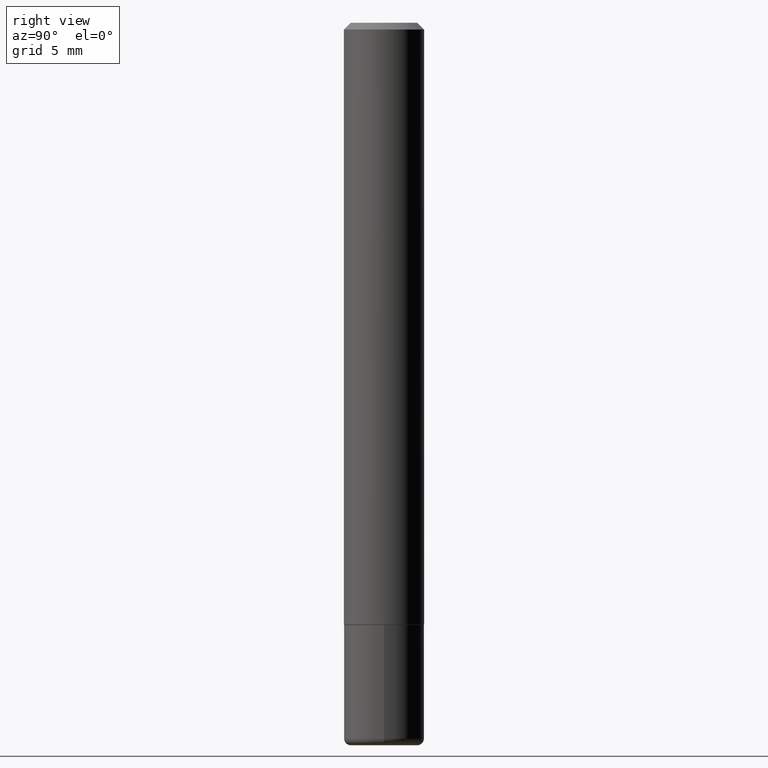
[diagram: clean part render]
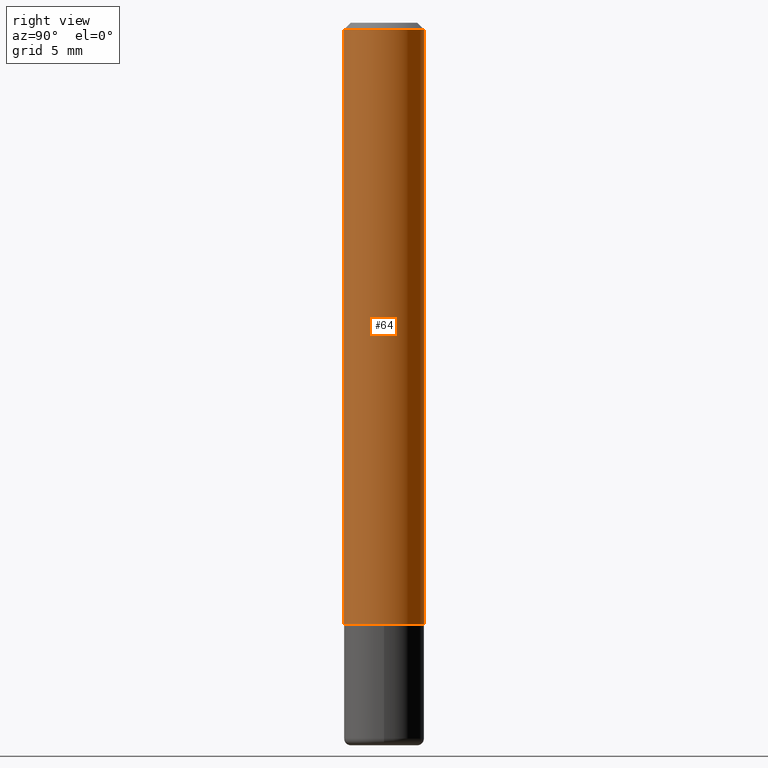
[diagram: same view with one face highlighted and labeled with its STEP entity id]
A machine part, right view. The second image highlights one B-rep face of the part: STEP entity #64.
In plain terms, the highlighted cylindrical surface (partial cylindrical patch) has radius 2.9997 mm, axis along (-0, 0, 1).
Its self-contained STEP definition (entity closure, byte-faithful):
#13 = EDGE_CURVE ( 'NONE', #164, #290, #186, .T. ) ;
#19 = CARTESIAN_POINT ( 'NONE',  ( 0.000000000000000000, 0.000000000000000000, 0.000000000000000000 ) ) ;
#28 = CARTESIAN_POINT ( 'NONE',  ( 8.391509709327015671E-16, 0.1180999999999940708, -1.770700000000000385 ) ) ;
#34 = CARTESIAN_POINT ( 'NONE',  ( 8.391509709326791832E-16, 0.1181000000000001354, -4.134987168965605036E-16 ) ) ;
#37 = ORIENTED_EDGE ( 'NONE', *, *, #106, .F. ) ;
#41 = ORIENTED_EDGE ( 'NONE', *, *, #362, .T. ) ;
#44 = DIRECTION ( 'NONE',  ( -6.982962677686265133E-15, -1.000000000000000000, 4.626330217890359081E-15 ) ) ;
#56 = AXIS2_PLACEMENT_3D ( 'NONE', #178, #299, #407 ) ;
#64 = ADVANCED_FACE ( 'NONE', ( #296 ), #175, .T. ) ;
#68 = DIRECTION ( 'NONE',  ( -2.438640930442267577E-29, 3.501259245525487621E-15, 1.000000000000000000 ) ) ;
#80 = DIRECTION ( 'NONE',  ( -2.438640930442267577E-29, 3.501259245525487226E-15, 1.000000000000000000 ) ) ;
#99 = LINE ( 'NONE', #346, #241 ) ;
#100 = VERTEX_POINT ( 'NONE', #333 ) ;
#106 = EDGE_CURVE ( 'NONE', #100, #197, #209, .T. ) ;
#107 = ORIENTED_EDGE ( 'NONE', *, *, #13, .T. ) ;
#131 = EDGE_LOOP ( 'NONE', ( #107, #41, #37, #334 ) ) ;
#143 = CARTESIAN_POINT ( 'NONE',  ( 4.318101495534122596E-29, -6.199679746051978993E-15, -1.770699999999999719 ) ) ;
#147 = DIRECTION ( 'NONE',  ( -6.982962677686265922E-15, -1.000000000000000000, 3.501259245525487226E-15 ) ) ;
#151 = CARTESIAN_POINT ( 'NONE',  ( -8.246878922347066502E-16, -0.1181000000000064498, -1.770699999999999275 ) ) ;
#164 = VERTEX_POINT ( 'NONE', #151 ) ;
#175 = CYLINDRICAL_SURFACE ( 'NONE', #240, 0.1181000000000001354 ) ;
#178 = CARTESIAN_POINT ( 'NONE',  ( 4.877281860884553932E-31, -7.002518491051000929E-17, -0.02000000000000007674 ) ) ;
#186 = CIRCLE ( 'NONE', #349, 0.1181000000000002603 ) ;
#197 = VERTEX_POINT ( 'NONE', #345 ) ;
#209 = CIRCLE ( 'NONE', #56, 0.1181000000000000383 ) ;
#240 = AXIS2_PLACEMENT_3D ( 'NONE', #19, #80, #147 ) ;
#241 = VECTOR ( 'NONE', #68, 39.37007874015748143 ) ;
#290 = VERTEX_POINT ( 'NONE', #28 ) ;
#296 = FACE_OUTER_BOUND ( 'NONE', #131, .T. ) ;
#299 = DIRECTION ( 'NONE',  ( -2.438640930442267577E-29, 3.501259245525487226E-15, 1.000000000000000000 ) ) ;
#316 = LINE ( 'NONE', #34, #351 ) ;
#332 = DIRECTION ( 'NONE',  ( -2.438640930442267577E-29, 3.501259245525487226E-15, 1.000000000000000000 ) ) ;
#333 = CARTESIAN_POINT ( 'NONE',  ( -8.102248135368175393E-16, -0.1181000000000001077, -0.01999999999999966388 ) ) ;
#334 = ORIENTED_EDGE ( 'NONE', *, *, #354, .F. ) ;
#345 = CARTESIAN_POINT ( 'NONE',  ( 8.246878922347486570E-16, 0.1180999999999999689, -0.02000000000000048961 ) ) ;
#346 = CARTESIAN_POINT ( 'NONE',  ( -8.246878922347489529E-16, -0.1181000000000001354, 4.134987168965605036E-16 ) ) ;
#349 = AXIS2_PLACEMENT_3D ( 'NONE', #143, #332, #44 ) ;
#351 = VECTOR ( 'NONE', #355, 39.37007874015748143 ) ;
#354 = EDGE_CURVE ( 'NONE', #164, #100, #99, .T. ) ;
#355 = DIRECTION ( 'NONE',  ( -2.438640930442267577E-29, 3.501259245525487621E-15, 1.000000000000000000 ) ) ;
#362 = EDGE_CURVE ( 'NONE', #290, #197, #316, .T. ) ;
#407 = DIRECTION ( 'NONE',  ( -6.982962677686265922E-15, -1.000000000000000000, 3.505890868245044514E-15 ) ) ;